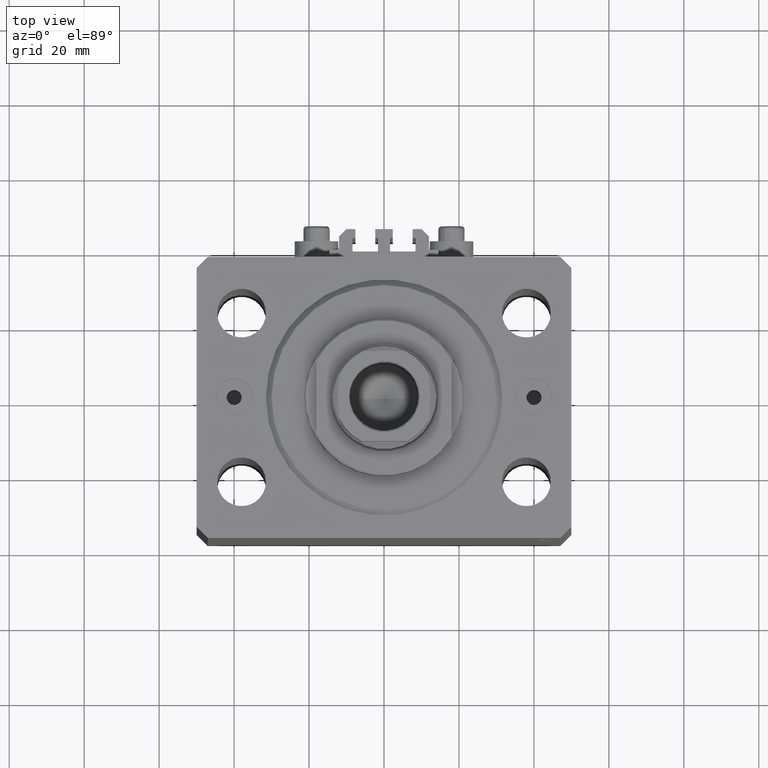
[diagram: clean part render]
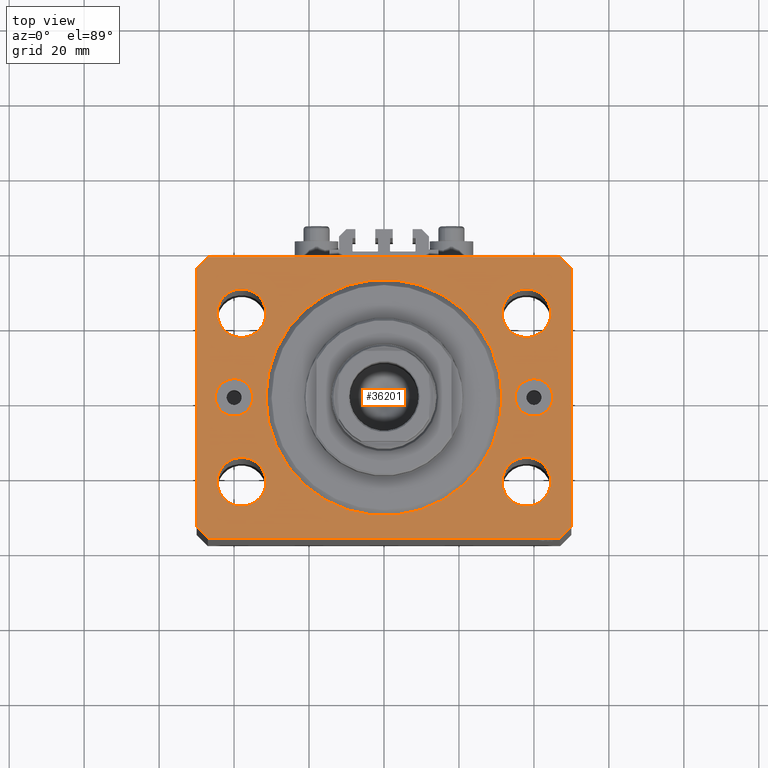
[diagram: same view with one face highlighted and labeled with its STEP entity id]
A machine part, top view. The second image highlights one B-rep face of the part: STEP entity #36201.
In plain terms, the highlighted planar face has unit normal (0, 0, 1).
Its self-contained STEP definition (entity closure, byte-faithful):
#179 = ORIENTED_EDGE ( 'NONE', *, *, #39250, .F. ) ;
#181 = CARTESIAN_POINT ( 'NONE',  ( 50.00000000000051870, 34.49999999999995026, 0.000000000000000000 ) ) ;
#268 = CIRCLE ( 'NONE', #35315, 31.50000000000000000 ) ;
#520 = CARTESIAN_POINT ( 'NONE',  ( -47.00000000000000000, -37.49999999999999289, 0.000000000000000000 ) ) ;
#686 = EDGE_LOOP ( 'NONE', ( #40753, #24457 ) ) ;
#854 = DIRECTION ( 'NONE',  ( 0.7071067811865483499, 0.7071067811865466846, 0.000000000000000000 ) ) ;
#924 = ORIENTED_EDGE ( 'NONE', *, *, #19380, .F. ) ;
#1196 = CARTESIAN_POINT ( 'NONE',  ( 50.00000000000000000, -34.50000000000000711, 0.000000000000000000 ) ) ;
#1241 = CARTESIAN_POINT ( 'NONE',  ( -37.99999999999999289, -22.50000000000000000, 0.000000000000000000 ) ) ;
#1603 = AXIS2_PLACEMENT_3D ( 'NONE', #18828, #36492, #33620 ) ;
#1771 = FACE_BOUND ( 'NONE', #18112, .T. ) ;
#1905 = EDGE_CURVE ( 'NONE', #34905, #18469, #15416, .T. ) ;
#2395 = ORIENTED_EDGE ( 'NONE', *, *, #40977, .T. ) ;
#2535 = CIRCLE ( 'NONE', #3303, 4.999999999999997335 ) ;
#2632 = ORIENTED_EDGE ( 'NONE', *, *, #44924, .F. ) ;
#2943 = CIRCLE ( 'NONE', #25809, 6.499999999999999112 ) ;
#3303 = AXIS2_PLACEMENT_3D ( 'NONE', #32220, #46298, #13366 ) ;
#3508 = EDGE_CURVE ( 'NONE', #25027, #43060, #42749, .T. ) ;
#3782 = CARTESIAN_POINT ( 'NONE',  ( 44.50000000000000000, 22.49999999999998934, 0.000000000000000000 ) ) ;
#3792 = VECTOR ( 'NONE', #18790, 1000.000000000000114 ) ;
#4193 = DIRECTION ( 'NONE',  ( 7.441712302741091634E-15, 1.000000000000000000, 0.000000000000000000 ) ) ;
#4470 = CARTESIAN_POINT ( 'NONE',  ( 31.50000000000000000, 22.49999999999998934, 0.000000000000000000 ) ) ;
#5334 = DIRECTION ( 'NONE',  ( 1.000000000000000000, 0.000000000000000000, 0.000000000000000000 ) ) ;
#5434 = CIRCLE ( 'NONE', #7722, 4.999999999999997335 ) ;
#6180 = AXIS2_PLACEMENT_3D ( 'NONE', #36834, #41111, #15346 ) ;
#6912 = DIRECTION ( 'NONE',  ( -1.000000000000000000, 7.381802025433175941E-17, 0.000000000000000000 ) ) ;
#7522 = DIRECTION ( 'NONE',  ( 1.000000000000000000, 0.000000000000000000, 0.000000000000000000 ) ) ;
#7623 = DIRECTION ( 'NONE',  ( 0.000000000000000000, 0.000000000000000000, 1.000000000000000000 ) ) ;
#7639 = CARTESIAN_POINT ( 'NONE',  ( -40.00000000000000000, 0.000000000000000000, 0.000000000000000000 ) ) ;
#7683 = AXIS2_PLACEMENT_3D ( 'NONE', #7639, #25310, #32949 ) ;
#7722 = AXIS2_PLACEMENT_3D ( 'NONE', #18644, #33905, #15755 ) ;
#7786 = LINE ( 'NONE', #22327, #45666 ) ;
#7852 = CIRCLE ( 'NONE', #37597, 6.499999999999999112 ) ;
#9090 = DIRECTION ( 'NONE',  ( 1.000000000000000000, 0.000000000000000000, 0.000000000000000000 ) ) ;
#9266 = VECTOR ( 'NONE', #854, 1000.000000000000000 ) ;
#9422 = EDGE_CURVE ( 'NONE', #15396, #44648, #268, .T. ) ;
#9550 = EDGE_CURVE ( 'NONE', #35860, #21795, #2535, .T. ) ;
#9556 = DIRECTION ( 'NONE',  ( 1.000000000000000000, 0.000000000000000000, 0.000000000000000000 ) ) ;
#9851 = VERTEX_POINT ( 'NONE', #21399 ) ;
#10265 = LINE ( 'NONE', #14087, #43361 ) ;
#10400 = CARTESIAN_POINT ( 'NONE',  ( -50.00000000000001421, 34.50000000000000000, 0.000000000000000000 ) ) ;
#10494 = EDGE_CURVE ( 'NONE', #9851, #17896, #12855, .T. ) ;
#10576 = LINE ( 'NONE', #25129, #35953 ) ;
#10981 = VERTEX_POINT ( 'NONE', #28719 ) ;
#11457 = CIRCLE ( 'NONE', #46540, 6.499999999999999112 ) ;
#11518 = EDGE_CURVE ( 'NONE', #17896, #14966, #12802, .T. ) ;
#11876 = EDGE_CURVE ( 'NONE', #21453, #30160, #11457, .T. ) ;
#11915 = CARTESIAN_POINT ( 'NONE',  ( -47.00000000000000000, -37.49999999999999289, 0.000000000000000000 ) ) ;
#12072 = CARTESIAN_POINT ( 'NONE',  ( 31.50000000000000000, 0.000000000000000000, 0.000000000000000000 ) ) ;
#12519 = FACE_BOUND ( 'NONE', #43762, .T. ) ;
#12802 = LINE ( 'NONE', #10400, #45361 ) ;
#12855 = LINE ( 'NONE', #46024, #31508 ) ;
#12941 = DIRECTION ( 'NONE',  ( 0.000000000000000000, 0.000000000000000000, 1.000000000000000000 ) ) ;
#13059 = AXIS2_PLACEMENT_3D ( 'NONE', #31578, #20341, #5334 ) ;
#13064 = AXIS2_PLACEMENT_3D ( 'NONE', #36748, #15496, #30061 ) ;
#13318 = DIRECTION ( 'NONE',  ( -0.7071067811865483499, -0.7071067811865466846, 0.000000000000000000 ) ) ;
#13366 = DIRECTION ( 'NONE',  ( 1.000000000000000000, 0.000000000000000000, 0.000000000000000000 ) ) ;
#13571 = CARTESIAN_POINT ( 'NONE',  ( 35.00000000000000000, 6.123233995736762338E-16, 0.000000000000000000 ) ) ;
#13659 = ORIENTED_EDGE ( 'NONE', *, *, #31623, .T. ) ;
#13705 = CARTESIAN_POINT ( 'NONE',  ( -35.00000000000000000, 0.000000000000000000, 0.000000000000000000 ) ) ;
#14087 = CARTESIAN_POINT ( 'NONE',  ( 47.00000000000056843, 37.49999999999999289, 0.000000000000000000 ) ) ;
#14804 = VERTEX_POINT ( 'NONE', #36133 ) ;
#14898 = DIRECTION ( 'NONE',  ( 0.000000000000000000, 0.000000000000000000, 1.000000000000000000 ) ) ;
#14964 = CARTESIAN_POINT ( 'NONE',  ( -31.49999999999999289, -22.50000000000000000, 0.000000000000000000 ) ) ;
#14966 = VERTEX_POINT ( 'NONE', #23202 ) ;
#15346 = DIRECTION ( 'NONE',  ( 1.000000000000000000, 0.000000000000000000, 0.000000000000000000 ) ) ;
#15396 = VERTEX_POINT ( 'NONE', #46217 ) ;
#15416 = LINE ( 'NONE', #22556, #9266 ) ;
#15496 = DIRECTION ( 'NONE',  ( 0.000000000000000000, 0.000000000000000000, 1.000000000000000000 ) ) ;
#15516 = EDGE_CURVE ( 'NONE', #18469, #10981, #7786, .T. ) ;
#15663 = VERTEX_POINT ( 'NONE', #13705 ) ;
#15671 = CARTESIAN_POINT ( 'NONE',  ( 45.00000000000000000, 0.000000000000000000, 0.000000000000000000 ) ) ;
#15727 = VERTEX_POINT ( 'NONE', #18001 ) ;
#15755 = DIRECTION ( 'NONE',  ( 1.000000000000000000, 0.000000000000000000, 0.000000000000000000 ) ) ;
#15810 = EDGE_LOOP ( 'NONE', ( #36328, #24943 ) ) ;
#16057 = CIRCLE ( 'NONE', #6180, 6.499999999999999112 ) ;
#16484 = DIRECTION ( 'NONE',  ( 0.000000000000000000, 0.000000000000000000, 1.000000000000000000 ) ) ;
#16550 = FACE_BOUND ( 'NONE', #39953, .T. ) ;
#16713 = CARTESIAN_POINT ( 'NONE',  ( -38.00000000000000000, 22.49999999999999645, 0.000000000000000000 ) ) ;
#16803 = AXIS2_PLACEMENT_3D ( 'NONE', #24949, #46433, #7522 ) ;
#17896 = VERTEX_POINT ( 'NONE', #28787 ) ;
#18001 = CARTESIAN_POINT ( 'NONE',  ( -45.00000000000000000, 6.123233995736762338E-16, 0.000000000000000000 ) ) ;
#18078 = CARTESIAN_POINT ( 'NONE',  ( 47.00000000000000000, -37.50000000000000711, 0.000000000000000000 ) ) ;
#18112 = EDGE_LOOP ( 'NONE', ( #2632, #37908 ) ) ;
#18281 = CARTESIAN_POINT ( 'NONE',  ( 47.00000000000056843, 37.49999999999999289, 0.000000000000000000 ) ) ;
#18469 = VERTEX_POINT ( 'NONE', #1196 ) ;
#18644 = CARTESIAN_POINT ( 'NONE',  ( -40.00000000000000000, 0.000000000000000000, 0.000000000000000000 ) ) ;
#18790 = DIRECTION ( 'NONE',  ( -0.7071067811865361374, 0.7071067811865588970, 0.000000000000000000 ) ) ;
#18828 = CARTESIAN_POINT ( 'NONE',  ( -38.00000000000000000, 22.49999999999999645, 0.000000000000000000 ) ) ;
#19023 = LINE ( 'NONE', #181, #3792 ) ;
#19380 = EDGE_CURVE ( 'NONE', #15663, #15727, #5434, .T. ) ;
#19406 = VERTEX_POINT ( 'NONE', #19576 ) ;
#19576 = CARTESIAN_POINT ( 'NONE',  ( 31.49999999999999289, -22.50000000000000000, 0.000000000000000000 ) ) ;
#19668 = ORIENTED_EDGE ( 'NONE', *, *, #3508, .F. ) ;
#19815 = ORIENTED_EDGE ( 'NONE', *, *, #1905, .T. ) ;
#19896 = DIRECTION ( 'NONE',  ( 0.000000000000000000, 0.000000000000000000, 1.000000000000000000 ) ) ;
#20015 = EDGE_CURVE ( 'NONE', #19406, #14804, #25266, .T. ) ;
#20202 = ORIENTED_EDGE ( 'NONE', *, *, #29696, .T. ) ;
#20341 = DIRECTION ( 'NONE',  ( 0.000000000000000000, -0.000000000000000000, -1.000000000000000000 ) ) ;
#20603 = CIRCLE ( 'NONE', #16803, 31.50000000000000000 ) ;
#20854 = EDGE_CURVE ( 'NONE', #15727, #15663, #28256, .T. ) ;
#21399 = CARTESIAN_POINT ( 'NONE',  ( -47.00000000000001421, 37.50000000000000000, 0.000000000000000000 ) ) ;
#21453 = VERTEX_POINT ( 'NONE', #29253 ) ;
#21616 = CARTESIAN_POINT ( 'NONE',  ( -44.50000000000000000, 22.49999999999999645, 0.000000000000000000 ) ) ;
#21795 = VERTEX_POINT ( 'NONE', #13571 ) ;
#22327 = CARTESIAN_POINT ( 'NONE',  ( 50.00000000000000000, -34.50000000000000711, 0.000000000000000000 ) ) ;
#22475 = DIRECTION ( 'NONE',  ( 1.000000000000000000, 0.000000000000000000, 0.000000000000000000 ) ) ;
#22556 = CARTESIAN_POINT ( 'NONE',  ( 47.00000000000000000, -37.50000000000000711, 0.000000000000000000 ) ) ;
#22965 = CIRCLE ( 'NONE', #13059, 4.999999999999997335 ) ;
#23169 = CARTESIAN_POINT ( 'NONE',  ( 0.000000000000000000, 0.000000000000000000, 0.000000000000000000 ) ) ;
#23202 = CARTESIAN_POINT ( 'NONE',  ( -50.00000000000000000, -34.50000000000000000, 0.000000000000000000 ) ) ;
#23559 = EDGE_CURVE ( 'NONE', #43060, #25027, #35518, .T. ) ;
#24407 = FACE_OUTER_BOUND ( 'NONE', #24716, .T. ) ;
#24457 = ORIENTED_EDGE ( 'NONE', *, *, #11876, .F. ) ;
#24494 = AXIS2_PLACEMENT_3D ( 'NONE', #1241, #44208, #22475 ) ;
#24716 = EDGE_LOOP ( 'NONE', ( #20202, #32548, #39189, #2395, #46321, #19815, #40416, #13659 ) ) ;
#24862 = ORIENTED_EDGE ( 'NONE', *, *, #9422, .F. ) ;
#24943 = ORIENTED_EDGE ( 'NONE', *, *, #39988, .T. ) ;
#24949 = CARTESIAN_POINT ( 'NONE',  ( 0.000000000000000000, 0.000000000000000000, 0.000000000000000000 ) ) ;
#25027 = VERTEX_POINT ( 'NONE', #33176 ) ;
#25129 = CARTESIAN_POINT ( 'NONE',  ( -50.00000000000000000, -34.50000000000000000, 0.000000000000000000 ) ) ;
#25266 = CIRCLE ( 'NONE', #13064, 6.499999999999999112 ) ;
#25310 = DIRECTION ( 'NONE',  ( 0.000000000000000000, 0.000000000000000000, 1.000000000000000000 ) ) ;
#25809 = AXIS2_PLACEMENT_3D ( 'NONE', #43903, #7623, #26233 ) ;
#26214 = ORIENTED_EDGE ( 'NONE', *, *, #23559, .F. ) ;
#26233 = DIRECTION ( 'NONE',  ( 1.000000000000000000, 0.000000000000000000, 0.000000000000000000 ) ) ;
#27074 = PLANE ( 'NONE',  #41911 ) ;
#27501 = DIRECTION ( 'NONE',  ( 1.000000000000000000, 0.000000000000000000, 0.000000000000000000 ) ) ;
#27569 = VERTEX_POINT ( 'NONE', #18281 ) ;
#28000 = FACE_BOUND ( 'NONE', #15810, .T. ) ;
#28256 = CIRCLE ( 'NONE', #7683, 4.999999999999997335 ) ;
#28719 = CARTESIAN_POINT ( 'NONE',  ( 50.00000000000051870, 34.49999999999995026, 0.000000000000000000 ) ) ;
#28787 = CARTESIAN_POINT ( 'NONE',  ( -50.00000000000001421, 34.50000000000000000, 0.000000000000000000 ) ) ;
#29019 = DIRECTION ( 'NONE',  ( 2.011273595335428326E-16, -1.000000000000000000, 0.000000000000000000 ) ) ;
#29253 = CARTESIAN_POINT ( 'NONE',  ( -44.49999999999999289, -22.50000000000000000, 0.000000000000000000 ) ) ;
#29311 = VERTEX_POINT ( 'NONE', #3782 ) ;
#29648 = DIRECTION ( 'NONE',  ( 1.000000000000000000, -1.476360405086644309E-16, 0.000000000000000000 ) ) ;
#29696 = EDGE_CURVE ( 'NONE', #27569, #9851, #10265, .T. ) ;
#29788 = EDGE_CURVE ( 'NONE', #32648, #29311, #2943, .T. ) ;
#29888 = LINE ( 'NONE', #520, #31183 ) ;
#29938 = DIRECTION ( 'NONE',  ( 0.000000000000000000, 0.000000000000000000, 1.000000000000000000 ) ) ;
#30061 = DIRECTION ( 'NONE',  ( 1.000000000000000000, 0.000000000000000000, 0.000000000000000000 ) ) ;
#30160 = VERTEX_POINT ( 'NONE', #14964 ) ;
#30372 = CARTESIAN_POINT ( 'NONE',  ( -37.99999999999999289, -22.50000000000000000, 0.000000000000000000 ) ) ;
#30591 = EDGE_LOOP ( 'NONE', ( #19668, #26214 ) ) ;
#30687 = VERTEX_POINT ( 'NONE', #11915 ) ;
#31085 = EDGE_CURVE ( 'NONE', #30687, #34905, #29888, .T. ) ;
#31108 = FACE_BOUND ( 'NONE', #45154, .T. ) ;
#31183 = VECTOR ( 'NONE', #29648, 1000.000000000000000 ) ;
#31508 = VECTOR ( 'NONE', #13318, 1000.000000000000000 ) ;
#31578 = CARTESIAN_POINT ( 'NONE',  ( 40.00000000000000000, 0.000000000000000000, 0.000000000000000000 ) ) ;
#31623 = EDGE_CURVE ( 'NONE', #10981, #27569, #19023, .T. ) ;
#32053 = DIRECTION ( 'NONE',  ( 0.7071067811865491270, -0.7071067811865459074, 0.000000000000000000 ) ) ;
#32220 = CARTESIAN_POINT ( 'NONE',  ( 40.00000000000000000, 0.000000000000000000, 0.000000000000000000 ) ) ;
#32548 = ORIENTED_EDGE ( 'NONE', *, *, #10494, .T. ) ;
#32648 = VERTEX_POINT ( 'NONE', #4470 ) ;
#32935 = CIRCLE ( 'NONE', #24494, 6.499999999999999112 ) ;
#32949 = DIRECTION ( 'NONE',  ( 1.000000000000000000, 0.000000000000000000, 0.000000000000000000 ) ) ;
#33176 = CARTESIAN_POINT ( 'NONE',  ( -31.50000000000000000, 22.49999999999999645, 0.000000000000000000 ) ) ;
#33620 = DIRECTION ( 'NONE',  ( 1.000000000000000000, 0.000000000000000000, 0.000000000000000000 ) ) ;
#33736 = DIRECTION ( 'NONE',  ( 1.000000000000000000, 0.000000000000000000, 0.000000000000000000 ) ) ;
#33905 = DIRECTION ( 'NONE',  ( 0.000000000000000000, 0.000000000000000000, 1.000000000000000000 ) ) ;
#34905 = VERTEX_POINT ( 'NONE', #18078 ) ;
#35315 = AXIS2_PLACEMENT_3D ( 'NONE', #23169, #16484, #9090 ) ;
#35518 = CIRCLE ( 'NONE', #41620, 6.499999999999999112 ) ;
#35860 = VERTEX_POINT ( 'NONE', #15671 ) ;
#35953 = VECTOR ( 'NONE', #32053, 1000.000000000000114 ) ;
#36133 = CARTESIAN_POINT ( 'NONE',  ( 44.49999999999999289, -22.50000000000000000, 0.000000000000000000 ) ) ;
#36201 = ADVANCED_FACE ( 'NONE', ( #24407, #38734, #1771, #16550, #38502, #12519, #31108, #28000 ), #27074, .T. ) ;
#36328 = ORIENTED_EDGE ( 'NONE', *, *, #9550, .T. ) ;
#36492 = DIRECTION ( 'NONE',  ( 0.000000000000000000, 0.000000000000000000, 1.000000000000000000 ) ) ;
#36748 = CARTESIAN_POINT ( 'NONE',  ( 37.99999999999999289, -22.50000000000000000, 0.000000000000000000 ) ) ;
#36834 = CARTESIAN_POINT ( 'NONE',  ( 37.99999999999999289, -22.50000000000000000, 0.000000000000000000 ) ) ;
#37597 = AXIS2_PLACEMENT_3D ( 'NONE', #40670, #14898, #33736 ) ;
#37908 = ORIENTED_EDGE ( 'NONE', *, *, #29788, .F. ) ;
#38038 = DIRECTION ( 'NONE',  ( 1.000000000000000000, 0.000000000000000000, -0.000000000000000000 ) ) ;
#38049 = EDGE_CURVE ( 'NONE', #44648, #15396, #20603, .T. ) ;
#38502 = FACE_BOUND ( 'NONE', #686, .T. ) ;
#38734 = FACE_BOUND ( 'NONE', #30591, .T. ) ;
#38976 = CARTESIAN_POINT ( 'NONE',  ( 0.000000000000000000, 0.000000000000000000, 0.000000000000000000 ) ) ;
#39189 = ORIENTED_EDGE ( 'NONE', *, *, #11518, .T. ) ;
#39250 = EDGE_CURVE ( 'NONE', #14804, #19406, #16057, .T. ) ;
#39953 = EDGE_LOOP ( 'NONE', ( #179, #45642 ) ) ;
#39988 = EDGE_CURVE ( 'NONE', #21795, #35860, #22965, .T. ) ;
#40416 = ORIENTED_EDGE ( 'NONE', *, *, #15516, .T. ) ;
#40670 = CARTESIAN_POINT ( 'NONE',  ( 38.00000000000000000, 22.49999999999998934, 0.000000000000000000 ) ) ;
#40753 = ORIENTED_EDGE ( 'NONE', *, *, #41039, .F. ) ;
#40977 = EDGE_CURVE ( 'NONE', #14966, #30687, #10576, .T. ) ;
#41039 = EDGE_CURVE ( 'NONE', #30160, #21453, #32935, .T. ) ;
#41111 = DIRECTION ( 'NONE',  ( 0.000000000000000000, 0.000000000000000000, 1.000000000000000000 ) ) ;
#41620 = AXIS2_PLACEMENT_3D ( 'NONE', #16713, #29938, #9556 ) ;
#41911 = AXIS2_PLACEMENT_3D ( 'NONE', #38976, #19896, #38038 ) ;
#42440 = ORIENTED_EDGE ( 'NONE', *, *, #20854, .F. ) ;
#42749 = CIRCLE ( 'NONE', #1603, 6.499999999999999112 ) ;
#43060 = VERTEX_POINT ( 'NONE', #21616 ) ;
#43361 = VECTOR ( 'NONE', #6912, 1000.000000000000000 ) ;
#43762 = EDGE_LOOP ( 'NONE', ( #45473, #24862 ) ) ;
#43903 = CARTESIAN_POINT ( 'NONE',  ( 38.00000000000000000, 22.49999999999998934, 0.000000000000000000 ) ) ;
#44208 = DIRECTION ( 'NONE',  ( 0.000000000000000000, 0.000000000000000000, 1.000000000000000000 ) ) ;
#44648 = VERTEX_POINT ( 'NONE', #12072 ) ;
#44924 = EDGE_CURVE ( 'NONE', #29311, #32648, #7852, .T. ) ;
#45154 = EDGE_LOOP ( 'NONE', ( #924, #42440 ) ) ;
#45361 = VECTOR ( 'NONE', #29019, 1000.000000000000000 ) ;
#45473 = ORIENTED_EDGE ( 'NONE', *, *, #38049, .F. ) ;
#45642 = ORIENTED_EDGE ( 'NONE', *, *, #20015, .F. ) ;
#45666 = VECTOR ( 'NONE', #4193, 1000.000000000000000 ) ;
#46024 = CARTESIAN_POINT ( 'NONE',  ( -47.00000000000001421, 37.50000000000000000, 0.000000000000000000 ) ) ;
#46217 = CARTESIAN_POINT ( 'NONE',  ( -31.50000000000000000, 3.857637417314162689E-15, 0.000000000000000000 ) ) ;
#46298 = DIRECTION ( 'NONE',  ( 0.000000000000000000, -0.000000000000000000, -1.000000000000000000 ) ) ;
#46321 = ORIENTED_EDGE ( 'NONE', *, *, #31085, .T. ) ;
#46433 = DIRECTION ( 'NONE',  ( 0.000000000000000000, 0.000000000000000000, 1.000000000000000000 ) ) ;
#46540 = AXIS2_PLACEMENT_3D ( 'NONE', #30372, #12941, #27501 ) ;